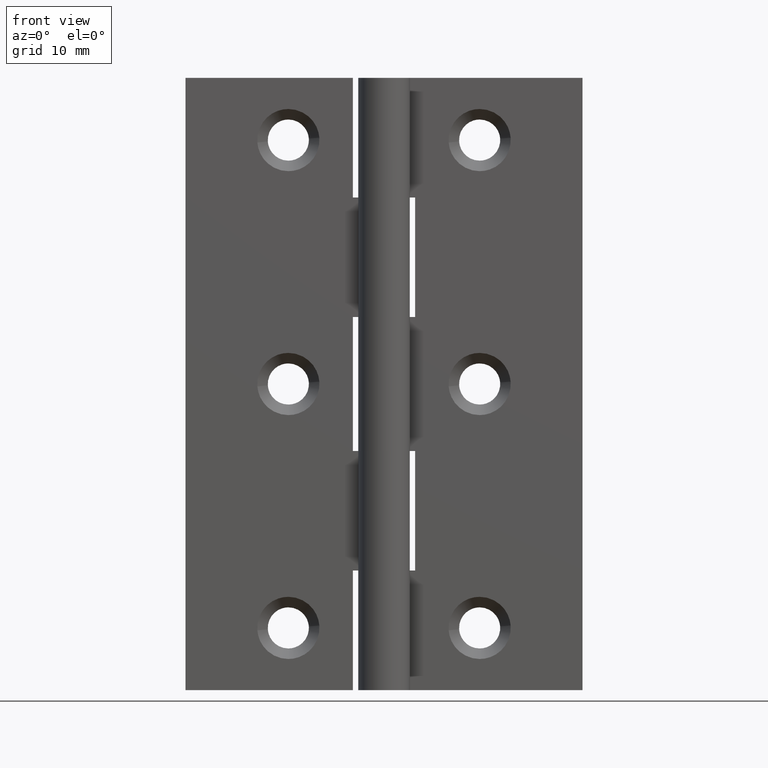
[diagram: clean part render]
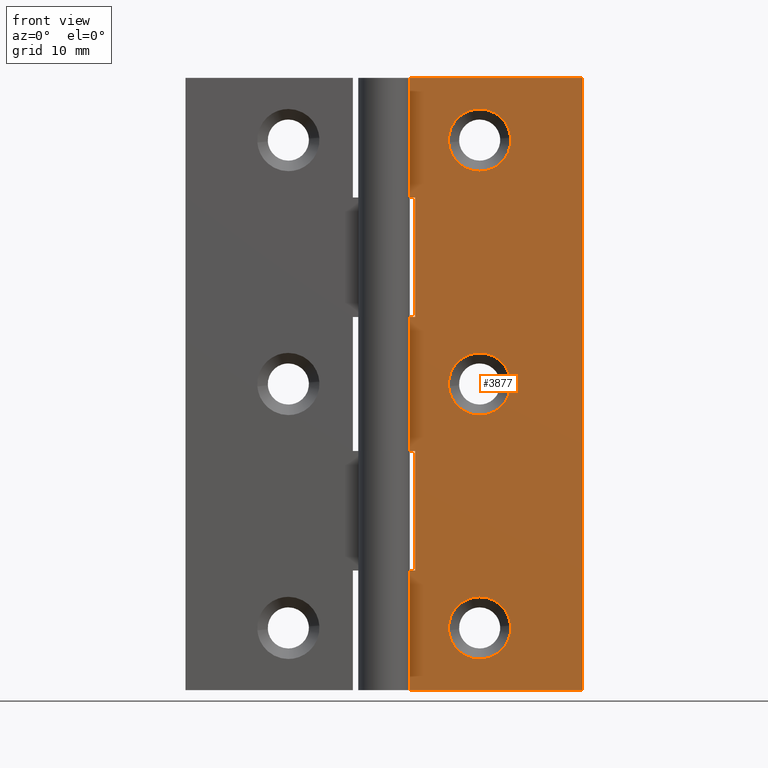
[diagram: same view with one face highlighted and labeled with its STEP entity id]
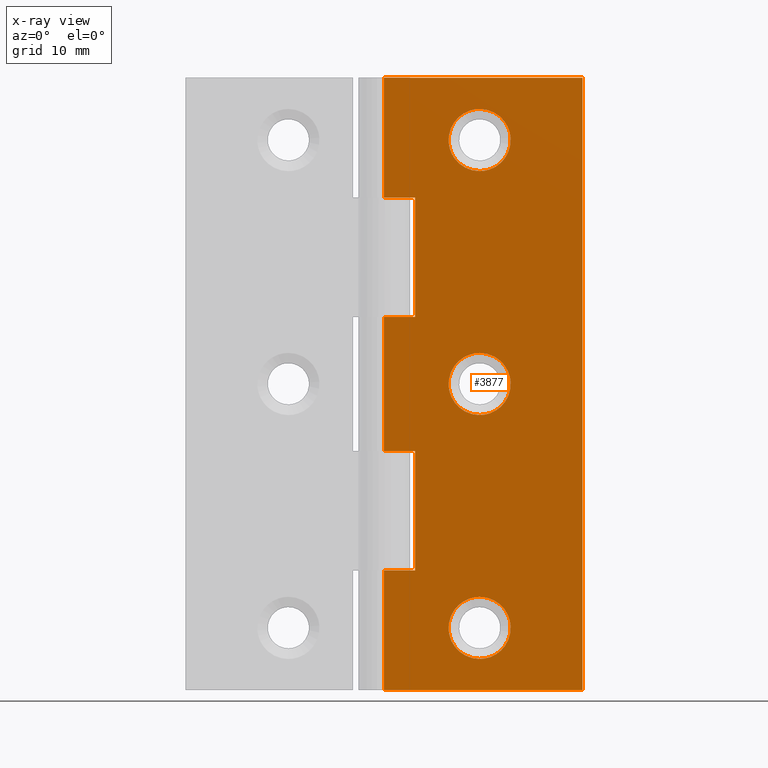
[diagram: x-ray of the same camera — body ghosted, the highlighted face saturated]
A machine part, front view. The second image highlights one B-rep face of the part: STEP entity #3877.
The next image is the same camera in x-ray: the body ghosted, the highlighted face saturated — about 0% of this face is hidden behind the body in this view.
In plain terms, the highlighted face is a freeform B-spline surface patch.
Its self-contained STEP definition (entity closure, byte-faithful):
#2252=CARTESIAN_POINT('',(13.239981275242370,1.499999999923259,57.754999057028073));
#2253=VERTEX_POINT('',#2252);
#2259=CARTESIAN_POINT('',(10.0,1.500000000000000,60.750006940395252));
#2260=VERTEX_POINT('',#2259);
#2261=CARTESIAN_POINT('',(10.0,1.500000000000000,60.750006940395252));
#2262=CARTESIAN_POINT('',(13.004269041706358,1.500000000000000,60.750006940395245));
#2263=CARTESIAN_POINT('',(13.239981275242370,1.499999999923259,57.754999057028073));
#2271=(BOUNDED_CURVE()B_SPLINE_CURVE(2,(#2261,#2262,#2263),.UNSPECIFIED.,.F.,.U.)B_SPLINE_CURVE_WITH_KNOTS((3,3),(0.0,0.236331300571056),.UNSPECIFIED.)CURVE()GEOMETRIC_REPRESENTATION_ITEM()RATIONAL_B_SPLINE_CURVE((1.0,0.723120658677496,0.969723356043029))REPRESENTATION_ITEM(''));
#2272=EDGE_CURVE('',#2260,#2253,#2271,.T.);
#2274=CARTESIAN_POINT('',(6.760018724757632,1.499999999923259,57.245014942971721));
#2275=VERTEX_POINT('',#2274);
#2276=CARTESIAN_POINT('',(6.760018724757632,1.499999999923260,57.245014942971721));
#2277=CARTESIAN_POINT('',(6.750000059604644,1.500000000000000,57.372314153980959));
#2278=CARTESIAN_POINT('',(6.750000059604645,1.500000000000000,57.500006999999897));
#2279=CARTESIAN_POINT('',(6.750000059604645,1.500000000000000,60.750006940395245));
#2280=CARTESIAN_POINT('',(10.0,1.500000000000000,60.750006940395252));
#2288=(BOUNDED_CURVE()B_SPLINE_CURVE(2,(#2276,#2277,#2278,#2279,#2280),.UNSPECIFIED.,.F.,.U.)B_SPLINE_CURVE_WITH_KNOTS((3,2,3),(0.736331300571056,0.750000000000000,1.0),.UNSPECIFIED.)CURVE()GEOMETRIC_REPRESENTATION_ITEM()RATIONAL_B_SPLINE_CURVE((0.969723356043029,0.983986122509051,1.0,0.707106781186547,1.0))REPRESENTATION_ITEM(''));
#2289=EDGE_CURVE('',#2275,#2260,#2288,.T.);
#2326=CARTESIAN_POINT('',(10.0,1.500000000000000,54.250007059604542));
#2327=VERTEX_POINT('',#2326);
#2328=CARTESIAN_POINT('',(10.0,1.500000000000000,54.250007059604542));
#2329=CARTESIAN_POINT('',(6.995730958293651,1.500000000000000,54.250007059604528));
#2330=CARTESIAN_POINT('',(6.760018724757632,1.499999999923259,57.245014942971721));
#2338=(BOUNDED_CURVE()B_SPLINE_CURVE(2,(#2328,#2329,#2330),.UNSPECIFIED.,.F.,.U.)B_SPLINE_CURVE_WITH_KNOTS((3,3),(0.500000000000000,0.736331300571055),.UNSPECIFIED.)CURVE()GEOMETRIC_REPRESENTATION_ITEM()RATIONAL_B_SPLINE_CURVE((1.0,0.723120658677496,0.969723356043028))REPRESENTATION_ITEM(''));
#2339=EDGE_CURVE('',#2327,#2275,#2338,.T.);
#2341=CARTESIAN_POINT('',(13.239981275242371,1.499999999923259,57.754999057028066));
#2342=CARTESIAN_POINT('',(13.249999940395362,1.500000000000000,57.627699846018842));
#2343=CARTESIAN_POINT('',(13.249999940395361,1.500000000000000,57.500006999999897));
#2344=CARTESIAN_POINT('',(13.249999940395357,1.500000000000000,54.250007059604535));
#2345=CARTESIAN_POINT('',(10.0,1.500000000000000,54.250007059604542));
#2353=(BOUNDED_CURVE()B_SPLINE_CURVE(2,(#2341,#2342,#2343,#2344,#2345),.UNSPECIFIED.,.F.,.U.)B_SPLINE_CURVE_WITH_KNOTS((3,2,3),(0.236331300571056,0.250000000000000,0.500000000000000),.UNSPECIFIED.)CURVE()GEOMETRIC_REPRESENTATION_ITEM()RATIONAL_B_SPLINE_CURVE((0.969723356043029,0.983986122509052,1.0,0.707106781186547,1.0))REPRESENTATION_ITEM(''));
#2354=EDGE_CURVE('',#2253,#2327,#2353,.T.);
#2580=CARTESIAN_POINT('',(13.239981275242370,1.499999999923258,32.254999057028172));
#2581=VERTEX_POINT('',#2580);
#2587=CARTESIAN_POINT('',(10.0,1.500000000000000,35.250006940395352));
#2588=VERTEX_POINT('',#2587);
#2589=CARTESIAN_POINT('',(10.0,1.500000000000000,35.250006940395352));
#2590=CARTESIAN_POINT('',(13.004269041706360,1.500000000000000,35.250006940395352));
#2591=CARTESIAN_POINT('',(13.239981275242368,1.499999999923258,32.254999057028165));
#2599=(BOUNDED_CURVE()B_SPLINE_CURVE(2,(#2589,#2590,#2591),.UNSPECIFIED.,.F.,.U.)B_SPLINE_CURVE_WITH_KNOTS((3,3),(0.0,0.236331300571056),.UNSPECIFIED.)CURVE()GEOMETRIC_REPRESENTATION_ITEM()RATIONAL_B_SPLINE_CURVE((1.0,0.723120658677495,0.969723356043030))REPRESENTATION_ITEM(''));
#2600=EDGE_CURVE('',#2588,#2581,#2599,.T.);
#2602=CARTESIAN_POINT('',(6.760018724757632,1.499999999923259,31.745014942971821));
#2603=VERTEX_POINT('',#2602);
#2604=CARTESIAN_POINT('',(6.760018724757632,1.499999999923260,31.745014942971824));
#2605=CARTESIAN_POINT('',(6.750000059604644,1.500000000000000,31.872314153981058));
#2606=CARTESIAN_POINT('',(6.750000059604645,1.500000000000000,32.000006999999997));
#2607=CARTESIAN_POINT('',(6.750000059604645,1.500000000000000,35.250006940395359));
#2608=CARTESIAN_POINT('',(10.0,1.500000000000000,35.250006940395352));
#2616=(BOUNDED_CURVE()B_SPLINE_CURVE(2,(#2604,#2605,#2606,#2607,#2608),.UNSPECIFIED.,.F.,.U.)B_SPLINE_CURVE_WITH_KNOTS((3,2,3),(0.736331300571056,0.750000000000000,1.0),.UNSPECIFIED.)CURVE()GEOMETRIC_REPRESENTATION_ITEM()RATIONAL_B_SPLINE_CURVE((0.969723356043029,0.983986122509051,1.0,0.707106781186547,1.0))REPRESENTATION_ITEM(''));
#2617=EDGE_CURVE('',#2603,#2588,#2616,.T.);
#2654=CARTESIAN_POINT('',(10.0,1.500000000000000,28.750007059604641));
#2655=VERTEX_POINT('',#2654);
#2656=CARTESIAN_POINT('',(10.0,1.500000000000000,28.750007059604641));
#2657=CARTESIAN_POINT('',(6.995730958293651,1.500000000000000,28.750007059604638));
#2658=CARTESIAN_POINT('',(6.760018724757632,1.499999999923259,31.745014942971821));
#2666=(BOUNDED_CURVE()B_SPLINE_CURVE(2,(#2656,#2657,#2658),.UNSPECIFIED.,.F.,.U.)B_SPLINE_CURVE_WITH_KNOTS((3,3),(0.500000000000000,0.736331300571055),.UNSPECIFIED.)CURVE()GEOMETRIC_REPRESENTATION_ITEM()RATIONAL_B_SPLINE_CURVE((1.0,0.723120658677496,0.969723356043028))REPRESENTATION_ITEM(''));
#2667=EDGE_CURVE('',#2655,#2603,#2666,.T.);
#2669=CARTESIAN_POINT('',(13.239981275242377,1.499999999923258,32.254999057028172));
#2670=CARTESIAN_POINT('',(13.249999940395359,1.500000000000000,32.127699846018935));
#2671=CARTESIAN_POINT('',(13.249999940395361,1.500000000000000,32.000006999999997));
#2672=CARTESIAN_POINT('',(13.249999940395357,1.500000000000000,28.750007059604634));
#2673=CARTESIAN_POINT('',(10.0,1.500000000000000,28.750007059604641));
#2681=(BOUNDED_CURVE()B_SPLINE_CURVE(2,(#2669,#2670,#2671,#2672,#2673),.UNSPECIFIED.,.F.,.U.)B_SPLINE_CURVE_WITH_KNOTS((3,2,3),(0.236331300571056,0.250000000000000,0.500000000000000),.UNSPECIFIED.)CURVE()GEOMETRIC_REPRESENTATION_ITEM()RATIONAL_B_SPLINE_CURVE((0.969723356043030,0.983986122509052,1.0,0.707106781186547,1.0))REPRESENTATION_ITEM(''));
#2682=EDGE_CURVE('',#2581,#2655,#2681,.T.);
#2908=CARTESIAN_POINT('',(13.239981275242370,1.499999999923258,6.754992057027959));
#2909=VERTEX_POINT('',#2908);
#2915=CARTESIAN_POINT('',(10.0,1.500000000000000,9.749999940395146));
#2916=VERTEX_POINT('',#2915);
#2917=CARTESIAN_POINT('',(10.0,1.500000000000000,9.749999940395146));
#2918=CARTESIAN_POINT('',(13.004269041706360,1.500000000000000,9.749999940395144));
#2919=CARTESIAN_POINT('',(13.239981275242368,1.499999999923258,6.754992057027959));
#2927=(BOUNDED_CURVE()B_SPLINE_CURVE(2,(#2917,#2918,#2919),.UNSPECIFIED.,.F.,.U.)B_SPLINE_CURVE_WITH_KNOTS((3,3),(0.0,0.236331300571056),.UNSPECIFIED.)CURVE()GEOMETRIC_REPRESENTATION_ITEM()RATIONAL_B_SPLINE_CURVE((1.0,0.723120658677495,0.969723356043030))REPRESENTATION_ITEM(''));
#2928=EDGE_CURVE('',#2916,#2909,#2927,.T.);
#2930=CARTESIAN_POINT('',(6.760018724757630,1.499999999923259,6.245007942971620));
#2931=VERTEX_POINT('',#2930);
#2932=CARTESIAN_POINT('',(6.760018724757630,1.499999999923259,6.245007942971620));
#2933=CARTESIAN_POINT('',(6.750000059604646,1.500000000000000,6.372307153980851));
#2934=CARTESIAN_POINT('',(6.750000059604645,1.500000000000000,6.499999999999790));
#2935=CARTESIAN_POINT('',(6.750000059604645,1.500000000000000,9.749999940395144));
#2936=CARTESIAN_POINT('',(10.0,1.500000000000000,9.749999940395146));
#2944=(BOUNDED_CURVE()B_SPLINE_CURVE(2,(#2932,#2933,#2934,#2935,#2936),.UNSPECIFIED.,.F.,.U.)B_SPLINE_CURVE_WITH_KNOTS((3,2,3),(0.736331300571056,0.750000000000000,1.0),.UNSPECIFIED.)CURVE()GEOMETRIC_REPRESENTATION_ITEM()RATIONAL_B_SPLINE_CURVE((0.969723356043030,0.983986122509052,1.0,0.707106781186547,1.0))REPRESENTATION_ITEM(''));
#2945=EDGE_CURVE('',#2931,#2916,#2944,.T.);
#2982=CARTESIAN_POINT('',(10.0,1.500000000000000,3.250000059604435));
#2983=VERTEX_POINT('',#2982);
#2984=CARTESIAN_POINT('',(10.0,1.500000000000000,3.250000059604435));
#2985=CARTESIAN_POINT('',(6.995730958293651,1.500000000000000,3.250000059604435));
#2986=CARTESIAN_POINT('',(6.760018724757630,1.499999999923259,6.245007942971620));
#2994=(BOUNDED_CURVE()B_SPLINE_CURVE(2,(#2984,#2985,#2986),.UNSPECIFIED.,.F.,.U.)B_SPLINE_CURVE_WITH_KNOTS((3,3),(0.500000000000000,0.736331300571055),.UNSPECIFIED.)CURVE()GEOMETRIC_REPRESENTATION_ITEM()RATIONAL_B_SPLINE_CURVE((1.0,0.723120658677496,0.969723356043028))REPRESENTATION_ITEM(''));
#2995=EDGE_CURVE('',#2983,#2931,#2994,.T.);
#2997=CARTESIAN_POINT('',(13.239981275242368,1.499999999923258,6.754992057027959));
#2998=CARTESIAN_POINT('',(13.249999940395359,1.500000000000000,6.627692846018728));
#2999=CARTESIAN_POINT('',(13.249999940395361,1.500000000000000,6.499999999999790));
#3000=CARTESIAN_POINT('',(13.249999940395357,1.500000000000000,3.250000059604436));
#3001=CARTESIAN_POINT('',(10.0,1.500000000000000,3.250000059604435));
#3009=(BOUNDED_CURVE()B_SPLINE_CURVE(2,(#2997,#2998,#2999,#3000,#3001),.UNSPECIFIED.,.F.,.U.)B_SPLINE_CURVE_WITH_KNOTS((3,2,3),(0.236331300571056,0.250000000000000,0.500000000000000),.UNSPECIFIED.)CURVE()GEOMETRIC_REPRESENTATION_ITEM()RATIONAL_B_SPLINE_CURVE((0.969723356043030,0.983986122509052,1.0,0.707106781186547,1.0))REPRESENTATION_ITEM(''));
#3010=EDGE_CURVE('',#2909,#2983,#3009,.T.);
#3021=CARTESIAN_POINT('',(3.250000000000000,1.499999999999946,39.000006999999897));
#3022=VERTEX_POINT('',#3021);
#3023=CARTESIAN_POINT('',(3.250000000000000,1.499999999999946,51.500006999999897));
#3024=VERTEX_POINT('',#3023);
#3025=CARTESIAN_POINT('',(3.250000000000000,1.499999999999946,39.000006999999897));
#3026=CARTESIAN_POINT('',(3.250000000000000,1.499999999999946,51.500006999999897));
#3027=QUASI_UNIFORM_CURVE('',1,(#3025,#3026),.UNSPECIFIED.,.F.,.U.);
#3028=EDGE_CURVE('',#3022,#3024,#3027,.T.);
#3057=CARTESIAN_POINT('',(-2.755364E-016,1.500000000000000,51.500006999999897));
#3058=VERTEX_POINT('',#3057);
#3059=CARTESIAN_POINT('',(3.250000000000000,1.499999999999946,51.500006999999897));
#3060=CARTESIAN_POINT('',(-2.755364E-016,1.500000000000000,51.500006999999897));
#3061=QUASI_UNIFORM_CURVE('',1,(#3059,#3060),.UNSPECIFIED.,.F.,.U.);
#3062=EDGE_CURVE('',#3024,#3058,#3061,.T.);
#3157=CARTESIAN_POINT('',(-2.755364E-016,1.500000000000000,39.000006999999947));
#3158=VERTEX_POINT('',#3157);
#3178=CARTESIAN_POINT('',(-2.755364E-016,1.500000000000000,39.000006999999947));
#3179=CARTESIAN_POINT('',(3.250000000000000,1.499999999999946,39.000006999999897));
#3180=QUASI_UNIFORM_CURVE('',1,(#3178,#3179),.UNSPECIFIED.,.F.,.U.);
#3181=EDGE_CURVE('',#3158,#3022,#3180,.T.);
#3199=CARTESIAN_POINT('',(3.250000000000000,1.499999999999946,25.0));
#3200=VERTEX_POINT('',#3199);
#3213=CARTESIAN_POINT('',(3.250000000000000,1.499999999999946,12.499999999999799));
#3214=VERTEX_POINT('',#3213);
#3220=CARTESIAN_POINT('',(3.250000000000000,1.499999999999946,25.0));
#3221=CARTESIAN_POINT('',(3.250000000000000,1.499999999999946,12.499999999999799));
#3222=QUASI_UNIFORM_CURVE('',1,(#3220,#3221),.UNSPECIFIED.,.F.,.U.);
#3223=EDGE_CURVE('',#3200,#3214,#3222,.T.);
#3269=CARTESIAN_POINT('',(-2.755364E-016,1.500000000000000,12.499999999999719));
#3270=VERTEX_POINT('',#3269);
#3290=CARTESIAN_POINT('',(3.250000000000000,1.499999999999946,12.499999999999799));
#3291=CARTESIAN_POINT('',(-2.755364E-016,1.500000000000000,12.499999999999719));
#3292=QUASI_UNIFORM_CURVE('',1,(#3290,#3291),.UNSPECIFIED.,.F.,.U.);
#3293=EDGE_CURVE('',#3214,#3270,#3292,.T.);
#3332=CARTESIAN_POINT('',(-2.755364E-016,1.500000000000000,25.0));
#3333=VERTEX_POINT('',#3332);
#3334=CARTESIAN_POINT('',(-2.755364E-016,1.500000000000000,25.0));
#3335=CARTESIAN_POINT('',(3.250000000000000,1.499999999999946,25.0));
#3336=QUASI_UNIFORM_CURVE('',1,(#3334,#3335),.UNSPECIFIED.,.F.,.U.);
#3337=EDGE_CURVE('',#3333,#3200,#3336,.T.);
#3373=CARTESIAN_POINT('',(-2.755364E-016,1.500000000000000,64.000006999999897));
#3374=VERTEX_POINT('',#3373);
#3375=CARTESIAN_POINT('',(20.750000000000000,1.500000000000000,64.000006999999897));
#3376=VERTEX_POINT('',#3375);
#3377=CARTESIAN_POINT('',(-2.755364E-016,1.500000000000000,64.000006999999897));
#3378=CARTESIAN_POINT('',(20.750000000000000,1.500000000000000,64.000006999999897));
#3379=QUASI_UNIFORM_CURVE('',1,(#3377,#3378),.UNSPECIFIED.,.F.,.U.);
#3380=EDGE_CURVE('',#3374,#3376,#3379,.T.);
#3451=CARTESIAN_POINT('',(-2.755364E-016,1.500000000000000,0.0));
#3452=VERTEX_POINT('',#3451);
#3453=CARTESIAN_POINT('',(20.750000000000000,1.500000000000000,0.0));
#3454=VERTEX_POINT('',#3453);
#3455=CARTESIAN_POINT('',(-2.755364E-016,1.500000000000000,0.0));
#3456=CARTESIAN_POINT('',(20.750000000000000,1.500000000000000,0.0));
#3457=QUASI_UNIFORM_CURVE('',1,(#3455,#3456),.UNSPECIFIED.,.F.,.U.);
#3458=EDGE_CURVE('',#3452,#3454,#3457,.T.);
#3530=CARTESIAN_POINT('',(20.750000000000000,1.500000000000000,0.0));
#3531=CARTESIAN_POINT('',(20.750000000000000,1.500000000000000,64.000006999999897));
#3532=QUASI_UNIFORM_CURVE('',1,(#3530,#3531),.UNSPECIFIED.,.F.,.U.);
#3533=EDGE_CURVE('',#3454,#3376,#3532,.T.);
#3566=CARTESIAN_POINT('',(-2.755364E-016,1.500000000000000,0.0));
#3567=CARTESIAN_POINT('',(-2.755364E-016,1.500000000000000,12.499999999999719));
#3568=QUASI_UNIFORM_CURVE('',1,(#3566,#3567),.UNSPECIFIED.,.F.,.U.);
#3569=EDGE_CURVE('',#3452,#3270,#3568,.T.);
#3604=CARTESIAN_POINT('',(-2.755364E-016,1.500000000000000,51.500006999999897));
#3605=CARTESIAN_POINT('',(-2.755364E-016,1.500000000000000,64.000006999999897));
#3606=QUASI_UNIFORM_CURVE('',1,(#3604,#3605),.UNSPECIFIED.,.F.,.U.);
#3607=EDGE_CURVE('',#3058,#3374,#3606,.T.);
#3749=CARTESIAN_POINT('',(-2.755364E-016,1.500000000000000,25.0));
#3750=CARTESIAN_POINT('',(-2.755364E-016,1.500000000000000,39.000006999999947));
#3751=QUASI_UNIFORM_CURVE('',1,(#3749,#3750),.UNSPECIFIED.,.F.,.U.);
#3752=EDGE_CURVE('',#3333,#3158,#3751,.T.);
#3840=CARTESIAN_POINT('',(-1.036462459782473,1.500000000000000,67.196807826391733));
#3841=CARTESIAN_POINT('',(-1.036462459782473,1.500000000000000,-3.196801970801143));
#3842=CARTESIAN_POINT('',(21.786463016340839,1.500000000000000,67.196807826391733));
#3843=CARTESIAN_POINT('',(21.786463016340839,1.500000000000000,-3.196801970801144));
#3844=B_SPLINE_SURFACE_WITH_KNOTS('',1,1,((#3840,#3842),(#3841,#3843)),.UNSPECIFIED.,.F.,.F.,.U.,(2,2),(2,2),(0.0,70.393609797192880),(0.0,22.822925476123320),.UNSPECIFIED.);
#3845=ORIENTED_EDGE('',*,*,#3181,.F.);
#3846=ORIENTED_EDGE('',*,*,#3752,.F.);
#3847=ORIENTED_EDGE('',*,*,#3337,.T.);
#3848=ORIENTED_EDGE('',*,*,#3223,.T.);
#3849=ORIENTED_EDGE('',*,*,#3293,.T.);
#3850=ORIENTED_EDGE('',*,*,#3569,.F.);
#3851=ORIENTED_EDGE('',*,*,#3458,.T.);
#3852=ORIENTED_EDGE('',*,*,#3533,.T.);
#3853=ORIENTED_EDGE('',*,*,#3380,.F.);
#3854=ORIENTED_EDGE('',*,*,#3607,.F.);
#3855=ORIENTED_EDGE('',*,*,#3062,.F.);
#3856=ORIENTED_EDGE('',*,*,#3028,.F.);
#3857=EDGE_LOOP('',(#3845,#3846,#3847,#3848,#3849,#3850,#3851,#3852,#3853,#3854,#3855,#3856));
#3858=FACE_OUTER_BOUND('',#3857,.T.);
#3859=ORIENTED_EDGE('',*,*,#2995,.T.);
#3860=ORIENTED_EDGE('',*,*,#2945,.T.);
#3861=ORIENTED_EDGE('',*,*,#2928,.T.);
#3862=ORIENTED_EDGE('',*,*,#3010,.T.);
#3863=EDGE_LOOP('',(#3859,#3860,#3861,#3862));
#3864=FACE_BOUND('',#3863,.T.);
#3865=ORIENTED_EDGE('',*,*,#2667,.T.);
#3866=ORIENTED_EDGE('',*,*,#2617,.T.);
#3867=ORIENTED_EDGE('',*,*,#2600,.T.);
#3868=ORIENTED_EDGE('',*,*,#2682,.T.);
#3869=EDGE_LOOP('',(#3865,#3866,#3867,#3868));
#3870=FACE_BOUND('',#3869,.T.);
#3871=ORIENTED_EDGE('',*,*,#2339,.T.);
#3872=ORIENTED_EDGE('',*,*,#2289,.T.);
#3873=ORIENTED_EDGE('',*,*,#2272,.T.);
#3874=ORIENTED_EDGE('',*,*,#2354,.T.);
#3875=EDGE_LOOP('',(#3871,#3872,#3873,#3874));
#3876=FACE_BOUND('',#3875,.T.);
#3877=ADVANCED_FACE('',(#3858,#3864,#3870,#3876),#3844,.T.);